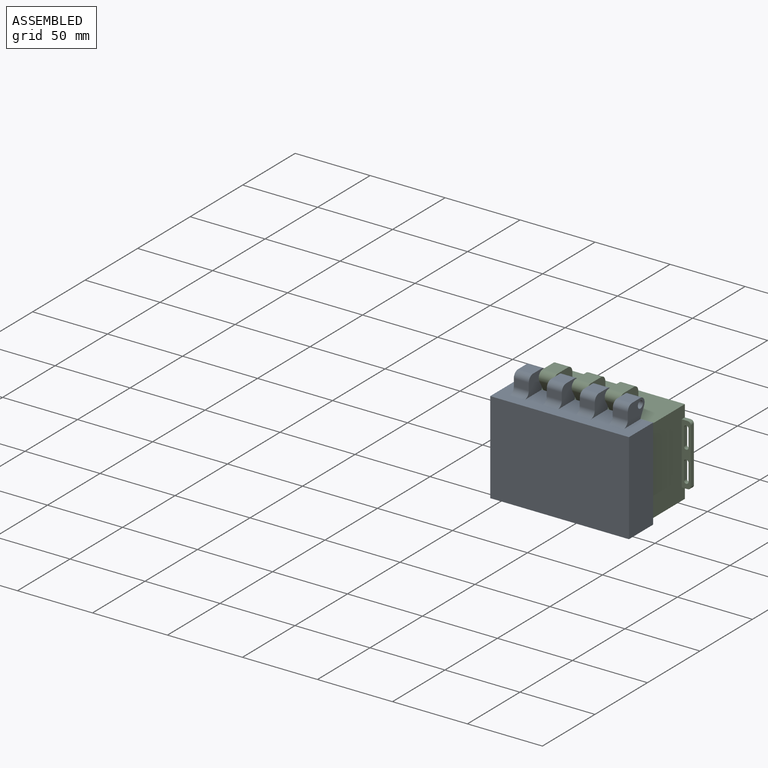
[diagram: assembled view]
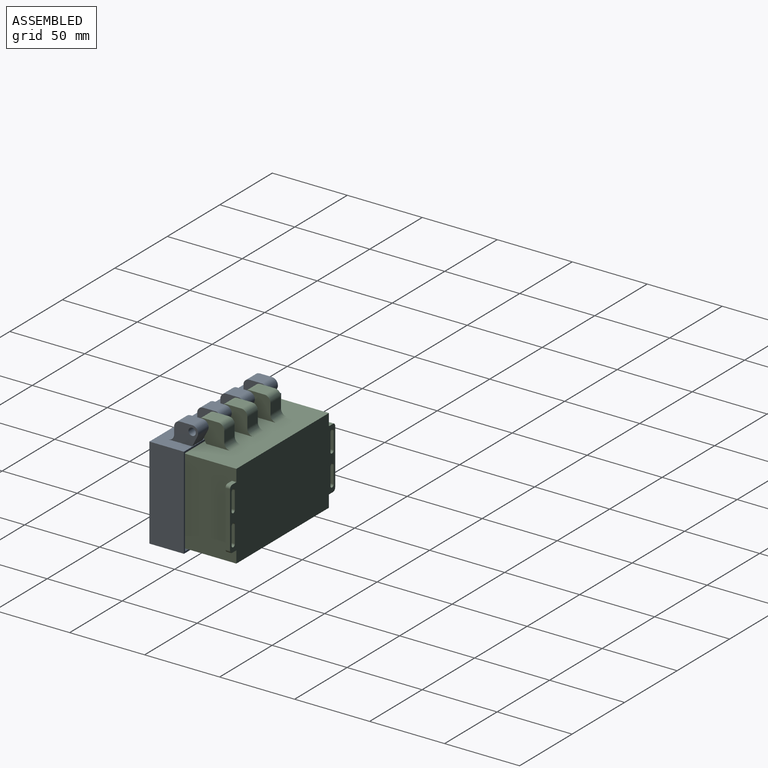
[diagram: assembled view, second angle]
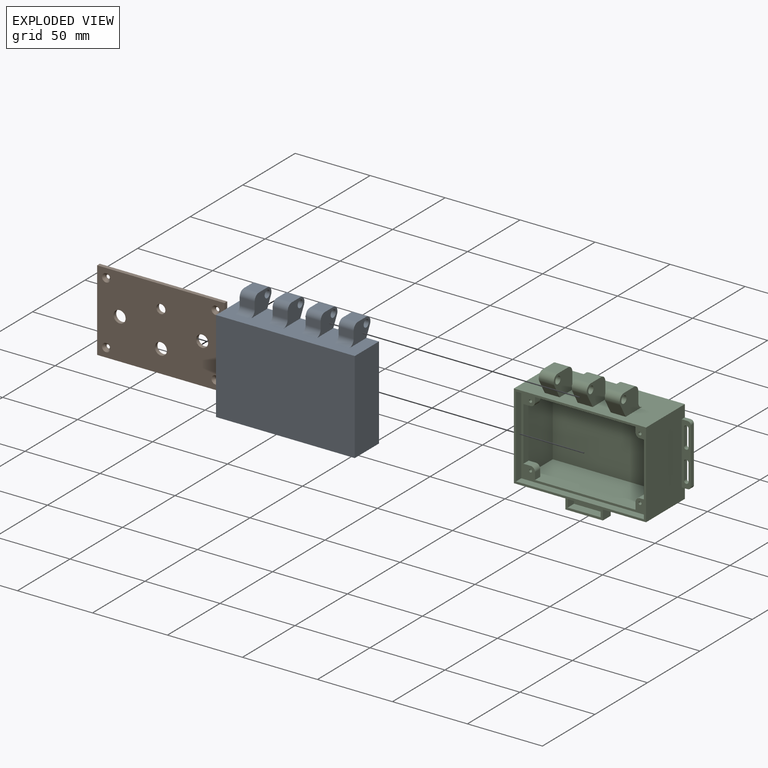
[diagram: exploded view]
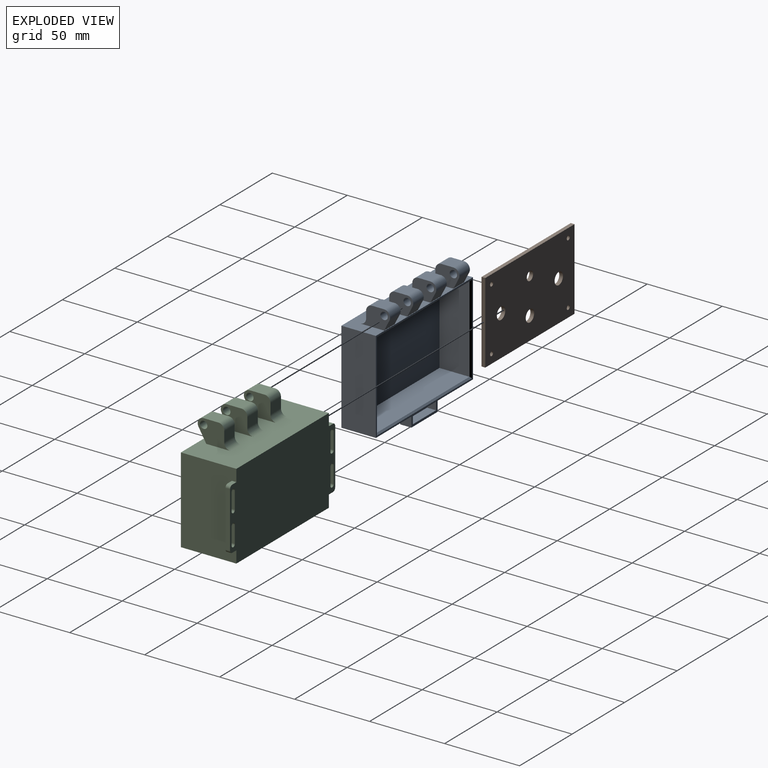
[diagram: exploded view, second angle]
ASSEMBLY  parts=3 mates=2
PART A: 60 faces, bbox 92.5x26.7x81 mm
  f0: cylinder r=4mm len=10mm, axis (-1,0,0), area 62.8mm2, adj f3,f5,f6,f7
  f1: cylinder r=4mm len=10mm, axis (1,0,0), area 62.8mm2, adj f3,f5,f6,f24
  f2: cylinder r=4mm len=10mm, axis (-1,0,0), area 81.7mm2, adj f3,f4,f5,f7
  f3: plane 19.99x12.8mm, normal (1,0,0), area 166.7mm2, adj f0,f1,f2,f4,f6,f7,f24,f55
  f4: plane 10x6.98mm, normal (0,0.89,-0.45), area 78.4mm2, adj f2,f3,f5,f24
  f5: plane 19.99x12.8mm, normal (-1,0,0), area 166.7mm2, adj f0,f1,f2,f4,f6,f7,f24,f55
  f6: plane 10x4.8mm, normal (0,-1,0), area 48mm2, adj f0,f1,f3,f5
  f7: plane 10x7.99mm, normal (0,0,1), area 79.9mm2, adj f0,f2,f3,f5
  f8: cylinder r=4mm len=10mm, axis (-1,0,0), area 62.8mm2, adj f11,f13,f14,f15
  f9: cylinder r=4mm len=10mm, axis (1,0,0), area 62.8mm2, adj f11,f13,f14,f24
  f10: cylinder r=4mm len=10mm, axis (-1,0,0), area 81.7mm2, adj f11,f12,f13,f15
  f11: plane 19.99x12.8mm, normal (1,0,0), area 166.7mm2, adj f8,f9,f10,f12,f14,f15,f24,f54
  f12: plane 10x6.98mm, normal (0,0.89,-0.45), area 78.4mm2, adj f10,f11,f13,f24
  f13: plane 19.99x12.8mm, normal (-1,0,0), area 166.7mm2, adj f8,f9,f10,f12,f14,f15,f24,f54
  f14: plane 10x4.8mm, normal (0,-1,0), area 48mm2, adj f8,f9,f11,f13
  f15: plane 10x7.99mm, normal (0,0,1), area 79.9mm2, adj f8,f10,f11,f13
  f16: cylinder r=4mm len=10mm, axis (-1,0,0), area 62.8mm2, adj f19,f21,f22,f23
  f17: cylinder r=4mm len=10mm, axis (1,0,0), area 62.8mm2, adj f19,f21,f22,f24
  f18: cylinder r=4mm len=10mm, axis (-1,0,0), area 81.7mm2, adj f19,f20,f21,f23
  f19: plane 19.99x12.8mm, normal (1,0,0), area 166.7mm2, adj f16,f17,f18,f20,f22,f23,f24,f53
  f20: plane 10x6.98mm, normal (0,0.89,-0.45), area 78.4mm2, adj f18,f19,f21,f24
  f21: plane 19.99x12.8mm, normal (-1,0,0), area 166.7mm2, adj f16,f17,f18,f20,f22,f23,f24,f53
  f22: plane 10x4.8mm, normal (0,-1,0), area 48mm2, adj f16,f17,f19,f21
  f23: plane 10x7.99mm, normal (0,0,1), area 79.9mm2, adj f16,f18,f19,f21
  f24: plane 92.51x23mm, normal (0,0,1), area 1487.8mm2, adj f1,f3,f4,f5,f9,f11,f12,f13
  f25: plane 22x6mm, normal (0,0,-1), area 132mm2, adj f30,f37,f41,f42
  f26: plane 92.51x23mm, normal (0,0,-1), area 1940.3mm2, adj f27,f28,f29,f30,f38,f40,f43
  f27: plane 61.49x23mm, normal (1,0,0), area 1414.3mm2, adj f24,f26,f29,f30
  f28: plane 61.49x23mm, normal (-1,0,0), area 1414.3mm2, adj f24,f26,f29,f30
  f29: plane 92.51x61.49mm, normal (0,-1,0), area 5688.6mm2, adj f24,f26,f27,f28
  f30: plane 92.51x68.19mm, normal (0,1,0), area 357.1mm2, adj f24,f25,f26,f27,f28,f36,f37,f38
  f31: plane 88.51x20mm, normal (0,0,1), area 1770.2mm2, adj f32,f34,f35,f59
  f32: plane 57.49x20mm, normal (-1,0,0), area 1149.8mm2, adj f31,f33,f35,f58
  f33: plane 88.51x20mm, normal (0,0,-1), area 1770.2mm2, adj f32,f34,f35,f56
  f34: plane 57.49x20mm, normal (1,0,0), area 1149.8mm2, adj f31,f33,f35,f57
  f35: plane 88.51x57.49mm, normal (0,1,0), area 5088.6mm2, adj f31,f32,f33,f34
  f36: plane 22x6mm, normal (0,0,1), area 132mm2, adj f30,f37,f41,f42
  f37: plane 6x5.2mm, normal (1,0,0), area 31.2mm2, adj f25,f30,f36,f42
  f38: plane 7.5x6.7mm, normal (-1,0,0), area 50.2mm2, adj f26,f30,f39,f43
  f39: plane 25x7.5mm, normal (0,0,-1), area 187.5mm2, adj f30,f38,f40,f43
  f40: plane 7.5x6.7mm, normal (1,0,0), area 50.2mm2, adj f26,f30,f39,f43
  f41: plane 6x5.2mm, normal (-1,0,0), area 31.2mm2, adj f25,f30,f36,f42
  f42: plane 22x5.2mm, normal (0,1,0), area 114.4mm2, adj f25,f36,f37,f41
  f43: plane 25x6.7mm, normal (0,-1,0), area 167.5mm2, adj f26,f38,f39,f40
  f44: plane 19.99x12.8mm, normal (1,0,0), area 166.7mm2, adj f24,f45,f47,f48,f49,f50,f51,f52
  f45: plane 10x6.98mm, normal (0,0.89,-0.45), area 78.4mm2, adj f24,f44,f46,f49
  f46: plane 19.99x12.8mm, normal (-1,0,0), area 166.7mm2, adj f24,f45,f47,f48,f49,f50,f51,f52
  f47: plane 10x4.8mm, normal (0,-1,0), area 48mm2, adj f44,f46,f50,f51
  f48: plane 10x7.99mm, normal (0,0,1), area 79.9mm2, adj f44,f46,f49,f51
  f49: cylinder r=4mm len=10mm, axis (-1,0,0), area 81.7mm2, adj f44,f45,f46,f48
  f50: cylinder r=4mm len=10mm, axis (1,0,0), area 62.8mm2, adj f24,f44,f46,f47
  f51: cylinder r=4mm len=10mm, axis (-1,0,0), area 62.8mm2, adj f44,f46,f47,f48
  f52: cylinder r=2.45mm len=10mm, axis (-1,0,0), area 153.9mm2, adj f44,f46
  f53: cylinder r=2.45mm len=10mm, axis (-1,0,0), area 153.9mm2, adj f19,f21
  f54: cylinder r=2.45mm len=10mm, axis (-1,0,0), area 153.9mm2, adj f11,f13
  f55: cylinder r=2.45mm len=10mm, axis (-1,0,0), area 153.9mm2, adj f3,f5
  f56: plane 90.51x1mm, normal (0,0.71,-0.71), area 126.6mm2, adj f30,f33,f57,f58
  f57: plane 59.49x1mm, normal (0.71,0.71,0), area 82.7mm2, adj f30,f34,f56,f59
  f58: plane 59.49x1mm, normal (-0.71,0.71,0), area 82.7mm2, adj f30,f32,f56,f59
  f59: plane 90.51x1mm, normal (0,0.71,0.71), area 126.6mm2, adj f30,f31,f57,f58
PART B: 18 faces, bbox 85x2.5x54 mm
  f0: plane 85x2.5mm, normal (0,0,1), area 212.5mm2, adj f1,f3,f4,f5
  f1: plane 53.98x2.5mm, normal (-1,0,0), area 134.9mm2, adj f0,f2,f4,f5
  f2: plane 85x2.5mm, normal (0,0,-1), area 212.5mm2, adj f1,f3,f4,f5
  f3: plane 53.98x2.5mm, normal (1,0,0), area 134.9mm2, adj f0,f2,f4,f5
  f4: plane 85x53.98mm, normal (0,-1,0), area 4384.5mm2, adj f0,f1,f2,f3,f6,f7,f8,f9
  f5: plane 85x53.98mm, normal (0,1,0), area 4314.1mm2, adj f0,f1,f2,f3,f6,f7,f8,f9
  f6: cylinder r=4mm len=8mm, axis (0,1,0), area 62.8mm2, adj f4,f5
  f7: cylinder r=4mm len=8mm, axis (0,1,0), area 62.8mm2, adj f4,f5
  f8: cylinder r=4mm len=8mm, axis (0,1,0), area 62.8mm2, adj f4,f5
  f9: cylinder r=3mm len=6mm, axis (0,1,0), area 47.1mm2, adj f4,f5
  f10: cylinder r=1.4mm len=2.8mm, axis (0,1,0), area 8.3mm2, adj f4,f11
  f11: cone r=1.4mm half-angle=41deg, axis (0,1,0), area 26.8mm2, adj f5,f10
  f12: cylinder r=1.4mm len=2.8mm, axis (0,1,0), area 8.3mm2, adj f4,f13
  f13: cone r=1.4mm half-angle=41deg, axis (0,1,0), area 26.8mm2, adj f5,f12
  f14: cylinder r=1.4mm len=2.8mm, axis (0,1,0), area 8.3mm2, adj f4,f15
  f15: cone r=1.4mm half-angle=41deg, axis (0,1,0), area 26.8mm2, adj f5,f14
  f16: cylinder r=1.4mm len=2.8mm, axis (0,1,0), area 8.3mm2, adj f4,f17
  f17: cone r=1.4mm half-angle=41deg, axis (0,1,0), area 26.8mm2, adj f5,f16
PART C: 102 faces, bbox 100.1x37.7x81 mm
  f0: plane 57.09x37mm, normal (-1,0,0), area 1989.1mm2, adj f17,f18,f28,f48,f94,f95,f101
  f1: cylinder r=4mm len=10mm, axis (1,0,0), area 62.8mm2, adj f4,f6,f7,f8
  f2: cylinder r=4mm len=10mm, axis (-1,0,0), area 62.8mm2, adj f4,f6,f7,f17
  f3: cylinder r=4mm len=10mm, axis (1,0,0), area 83.8mm2, adj f4,f5,f6,f8
  f4: plane 21.73x15mm, normal (-1,0,0), area 215.1mm2, adj f1,f2,f3,f5,f7,f8,f17,f73
  f5: plane 10x9mm, normal (0,-0.87,-0.5), area 103.9mm2, adj f3,f4,f6,f17
  f6: plane 21.73x15mm, normal (1,0,0), area 215.1mm2, adj f1,f2,f3,f5,f7,f8,f17,f73
  f7: plane 10x7mm, normal (0,1,0), area 70mm2, adj f1,f2,f4,f6
  f8: plane 10x9.73mm, normal (0,0,1), area 97.3mm2, adj f1,f3,f4,f6
  f9: cylinder r=4mm len=10mm, axis (1,0,0), area 62.8mm2, adj f12,f14,f15,f16
  f10: cylinder r=4mm len=10mm, axis (-1,0,0), area 62.8mm2, adj f12,f14,f15,f17
  f11: cylinder r=4mm len=10mm, axis (1,0,0), area 83.8mm2, adj f12,f13,f14,f16
  f12: plane 21.73x15mm, normal (-1,0,0), area 215.1mm2, adj f9,f10,f11,f13,f15,f16,f17,f72
  f13: plane 10x9mm, normal (0,-0.87,-0.5), area 103.9mm2, adj f11,f12,f14,f17
  f14: plane 21.73x15mm, normal (1,0,0), area 215.1mm2, adj f9,f10,f11,f13,f15,f16,f17,f72
  f15: plane 10x7mm, normal (0,1,0), area 70mm2, adj f9,f10,f12,f14
  f16: plane 10x9.73mm, normal (0,0,1), area 97.3mm2, adj f9,f11,f12,f14
  f17: plane 88.11x37mm, normal (0,0,1), area 2780.1mm2, adj f0,f2,f4,f5,f6,f10,f12,f13
  f18: plane 88.11x37mm, normal (0,0,-1), area 3072.6mm2, adj f0,f23,f28,f48,f53,f54,f60,f62
  f19: plane 54.26x25mm, normal (1,0,0), area 1356.6mm2, adj f20,f22,f45,f47
  f20: plane 85.28x25mm, normal (0,0,-1), area 2132.1mm2, adj f19,f21,f45,f47
  f21: plane 54.26x25mm, normal (-1,0,0), area 1356.6mm2, adj f20,f22,f45,f47
  f22: plane 85.28x25mm, normal (0,0,1), area 2132.1mm2, adj f19,f21,f45,f47
  f23: plane 57.09x37mm, normal (1,0,0), area 1989.1mm2, adj f17,f18,f28,f48,f74,f86,f87
  f24: plane 54.26x5mm, normal (1,0,0), area 271.3mm2, adj f25,f27,f28,f46
  f25: plane 85.28x5mm, normal (0,0,-1), area 426.4mm2, adj f24,f26,f28,f46
  f26: plane 54.26x5mm, normal (-1,0,0), area 271.3mm2, adj f25,f27,f28,f46
  f27: plane 85.28x5mm, normal (0,0,1), area 426.4mm2, adj f24,f26,f28,f46
  f28: plane 88.11x57.09mm, normal (0,-1,0), area 402.7mm2, adj f0,f17,f18,f23,f24,f25,f26,f27
  f29: plane 67x5mm, normal (0,0,1), area 335mm2, adj f30,f44,f45,f46
  f30: plane 5x4.73mm, normal (1,0,0), area 23.6mm2, adj f29,f31,f45,f46
  f31: cylinder r=3mm len=5mm, axis (0,-1,0), area 23.6mm2, adj f30,f32,f45,f46
  f32: plane 5x4.73mm, normal (0,0,1), area 23.6mm2, adj f31,f33,f45,f46
  f33: plane 35.98x5mm, normal (1,0,0), area 179.9mm2, adj f32,f34,f45,f46
  f34: plane 5x4.73mm, normal (0,0,-1), area 23.6mm2, adj f33,f35,f45,f46
  f35: cylinder r=3mm len=5mm, axis (0,-1,0), area 23.6mm2, adj f34,f36,f45,f46
  f36: plane 5x4.73mm, normal (1,0,0), area 23.6mm2, adj f35,f37,f45,f46
  f37: plane 67x5mm, normal (0,0,-1), area 335mm2, adj f36,f38,f45,f46
  f38: plane 5x4.73mm, normal (-1,0,0), area 23.6mm2, adj f37,f39,f45,f46
  f39: cylinder r=3mm len=5mm, axis (0,-1,0), area 23.6mm2, adj f38,f40,f45,f46
  f40: plane 5x4.73mm, normal (0,0,-1), area 23.6mm2, adj f39,f41,f45,f46
  f41: plane 35.98x5mm, normal (-1,0,0), area 179.9mm2, adj f40,f42,f45,f46
  f42: plane 5x4.73mm, normal (0,0,1), area 23.6mm2, adj f41,f43,f45,f46
  f43: cylinder r=3mm len=5mm, axis (0,-1,0), area 23.6mm2, adj f42,f44,f45,f46
  f44: plane 5x4.73mm, normal (-1,0,0), area 23.6mm2, adj f29,f43,f45,f46
  f45: plane 85.28x54.26mm, normal (0,1,0), area 605.2mm2, adj f19,f20,f21,f22,f29,f30,f31,f32
  f46: plane 85.28x54.26mm, normal (0,-1,0), area 605.2mm2, adj f24,f25,f26,f27,f29,f30,f31,f32
  f47: plane 85.28x54.26mm, normal (0,-1,0), area 4627.6mm2, adj f19,f20,f21,f22
  f48: plane 100.11x57.09mm, normal (0,1,0), area 5353.1mm2, adj f0,f17,f18,f23,f74,f75,f76,f77
  f49: cylinder r=1mm len=5mm, axis (0,-1,0), area 31.4mm2, adj f45,f46
  f50: cylinder r=1mm len=5mm, axis (0,-1,0), area 31.4mm2, adj f45,f46
  f51: cylinder r=1mm len=5mm, axis (0,-1,0), area 31.4mm2, adj f45,f46
  f52: cylinder r=1mm len=5mm, axis (0,-1,0), area 31.4mm2, adj f45,f46
  f53: plane 8.9x7.5mm, normal (1,0,0), area 66.8mm2, adj f18,f59,f60,f62
  f54: plane 8.9x7.5mm, normal (-1,0,0), area 66.8mm2, adj f18,f59,f60,f62
  f55: plane 6x5.2mm, normal (1,0,0), area 31.2mm2, adj f56,f58,f60,f61
  f56: plane 22x6mm, normal (0,0,-1), area 132mm2, adj f55,f57,f60,f61
  f57: plane 6x5.2mm, normal (-1,0,0), area 31.2mm2, adj f56,f58,f60,f61
  f58: plane 22x6mm, normal (0,0,1), area 132mm2, adj f55,f57,f60,f61
  f59: plane 25x7.5mm, normal (0,0,-1), area 187.5mm2, adj f53,f54,f60,f62
  f60: plane 25x8.9mm, normal (0,-1,0), area 108.1mm2, adj f18,f53,f54,f55,f56,f57,f58,f59
  f61: plane 22x5.2mm, normal (0,-1,0), area 114.4mm2, adj f55,f56,f57,f58
  f62: plane 25x8.9mm, normal (0,1,0), area 222.5mm2, adj f18,f53,f54,f59
  f63: plane 21.73x15mm, normal (-1,0,0), area 215.1mm2, adj f17,f64,f66,f67,f68,f69,f70,f71
  f64: plane 10x9mm, normal (0,-0.87,-0.5), area 103.9mm2, adj f17,f63,f65,f68
  f65: plane 21.73x15mm, normal (1,0,0), area 215.1mm2, adj f17,f64,f66,f67,f68,f69,f70,f71
  f66: plane 10x7mm, normal (0,1,0), area 70mm2, adj f63,f65,f69,f70
  f67: plane 10x9.73mm, normal (0,0,1), area 97.3mm2, adj f63,f65,f68,f70
  f68: cylinder r=4mm len=10mm, axis (1,0,0), area 83.8mm2, adj f63,f64,f65,f67
  f69: cylinder r=4mm len=10mm, axis (-1,0,0), area 62.8mm2, adj f17,f63,f65,f66
  f70: cylinder r=4mm len=10mm, axis (1,0,0), area 62.8mm2, adj f63,f65,f66,f67
  f71: cylinder r=2.45mm len=10mm, axis (-1,0,0), area 153.9mm2, adj f63,f65
  f72: cylinder r=2.45mm len=10mm, axis (-1,0,0), area 153.9mm2, adj f12,f14
  f73: cylinder r=2.45mm len=10mm, axis (-1,0,0), area 153.9mm2, adj f4,f6
  f74: plane 4x3mm, normal (0,0,1), area 12mm2, adj f23,f48,f75,f87
  f75: cylinder r=2mm len=3mm, axis (0,1,0), area 9.4mm2, adj f48,f74,f76,f87
  f76: plane 37.09x3mm, normal (1,0,0), area 111.3mm2, adj f48,f75,f77,f87
  f77: cylinder r=2mm len=3mm, axis (0,1,0), area 9.4mm2, adj f48,f76,f86,f87
  f78: plane 11.55x3mm, normal (1,0,0), area 34.6mm2, adj f48,f79,f84,f87
  f79: cylinder r=1.5mm len=3mm, axis (0,1,0), area 14.1mm2, adj f48,f78,f80,f87
  f80: plane 11.55x3mm, normal (-1,0,0), area 34.6mm2, adj f48,f79,f84,f87
  f81: cylinder r=1.5mm len=3mm, axis (0,1,0), area 14.1mm2, adj f48,f82,f85,f87
  f82: plane 11.55x3mm, normal (1,0,0), area 34.6mm2, adj f48,f81,f83,f87
  f83: cylinder r=1.5mm len=3mm, axis (0,1,0), area 14.1mm2, adj f48,f82,f85,f87
  f84: cylinder r=1.5mm len=3mm, axis (0,1,0), area 14.1mm2, adj f48,f78,f80,f87
  f85: plane 11.55x3mm, normal (-1,0,0), area 34.6mm2, adj f48,f81,f83,f87
  f86: plane 4x3mm, normal (0,0,-1), area 12mm2, adj f23,f48,f77,f87
  f87: plane 41.09x6mm, normal (0,-1,0), area 161.4mm2, adj f23,f74,f75,f76,f77,f78,f79,f80
  f88: plane 11.55x3mm, normal (1,0,0), area 34.6mm2, adj f48,f89,f100,f101
  f89: cylinder r=1.5mm len=3mm, axis (0,1,0), area 14.1mm2, adj f48,f88,f90,f101
  f90: plane 11.55x3mm, normal (-1,0,0), area 34.6mm2, adj f48,f89,f100,f101
  f91: cylinder r=1.5mm len=3mm, axis (0,1,0), area 14.1mm2, adj f48,f92,f98,f101
  f92: plane 11.55x3mm, normal (-1,0,0), area 34.6mm2, adj f48,f91,f93,f101
  f93: cylinder r=1.5mm len=3mm, axis (0,1,0), area 14.1mm2, adj f48,f92,f98,f101
  f94: plane 4x3mm, normal (0,0,1), area 12mm2, adj f0,f48,f99,f101
  f95: plane 4x3mm, normal (0,0,-1), area 12mm2, adj f0,f48,f96,f101
  f96: cylinder r=2mm len=3mm, axis (0,1,0), area 9.4mm2, adj f48,f95,f97,f101
  f97: plane 37.09x3mm, normal (-1,0,0), area 111.3mm2, adj f48,f96,f99,f101
  f98: plane 11.55x3mm, normal (1,0,0), area 34.6mm2, adj f48,f91,f93,f101
  f99: cylinder r=2mm len=3mm, axis (0,1,0), area 9.4mm2, adj f48,f94,f97,f101
  f100: cylinder r=1.5mm len=3mm, axis (0,1,0), area 14.1mm2, adj f48,f88,f90,f101
  f101: plane 41.09x6mm, normal (0,-1,0), area 161.4mm2, adj f0,f88,f89,f90,f91,f92,f93,f94
PLACE A rot(axis=(-1,0,0.08),0deg) t=(13.88,28.58,-38.35)mm
PLACE B rot(axis=(0,0,-1),180deg) t=(-13.88,2.5,-38.35)mm
PLACE C t=(13.88,-20,-38.35)mm fixed
MATE fastened C.f39 <-> B.f10  axis (0,-1,0) through (36.5,5,-6.14)mm
MATE revolute C.f71 <-> A.f2  axis (1,0,0) through (27,3.27,12.41)mm
